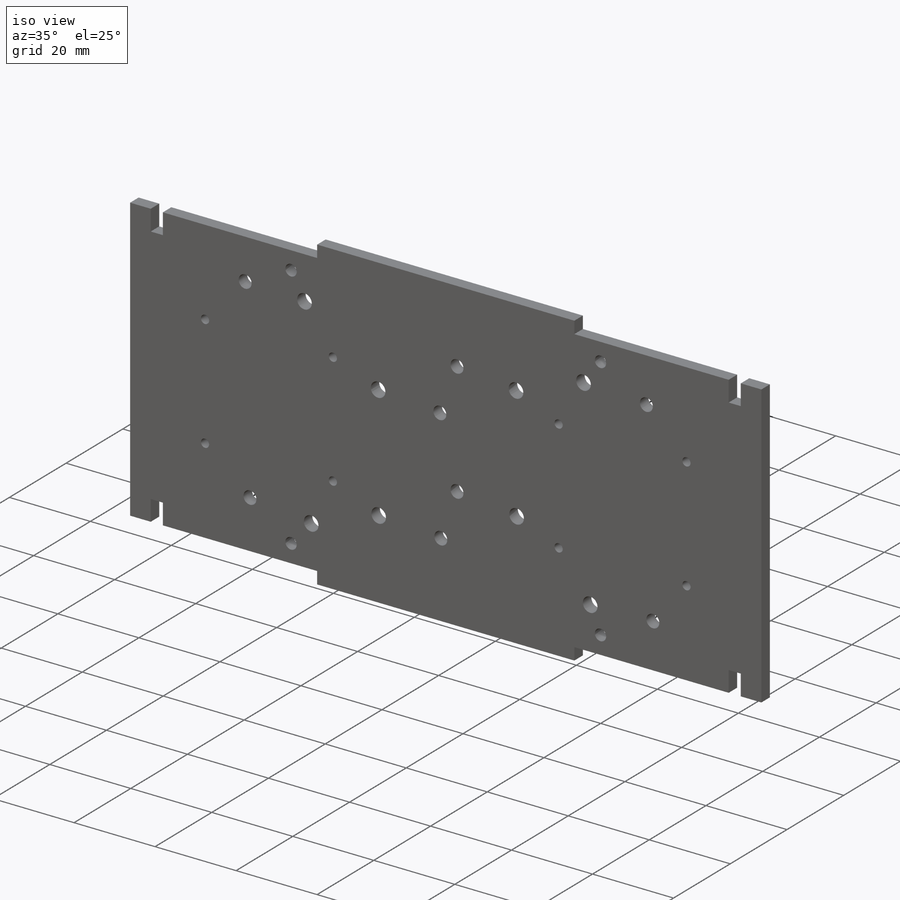
[diagram: iso view]
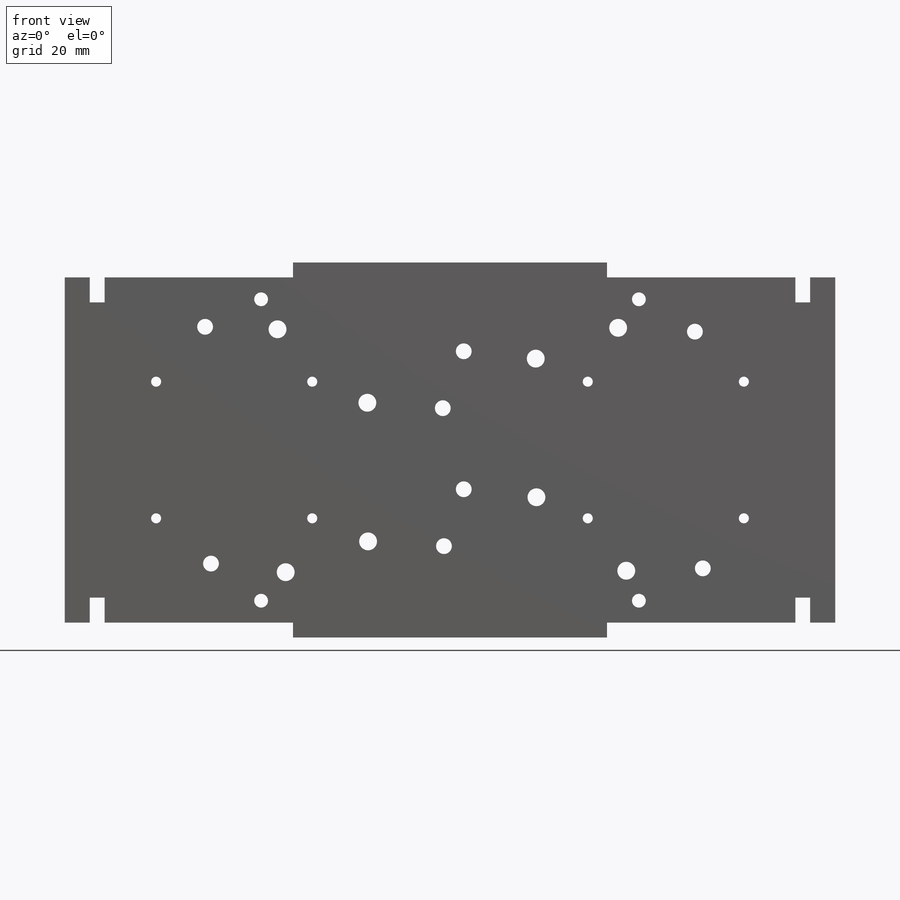
[diagram: front view]
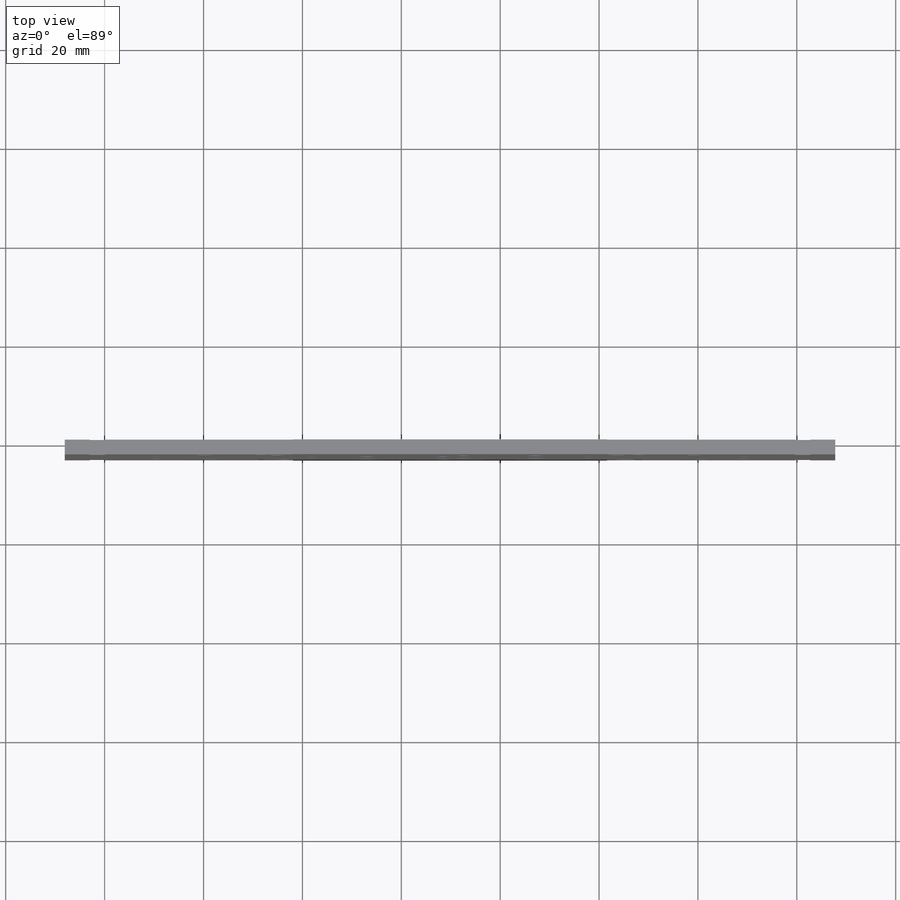
[diagram: top view]
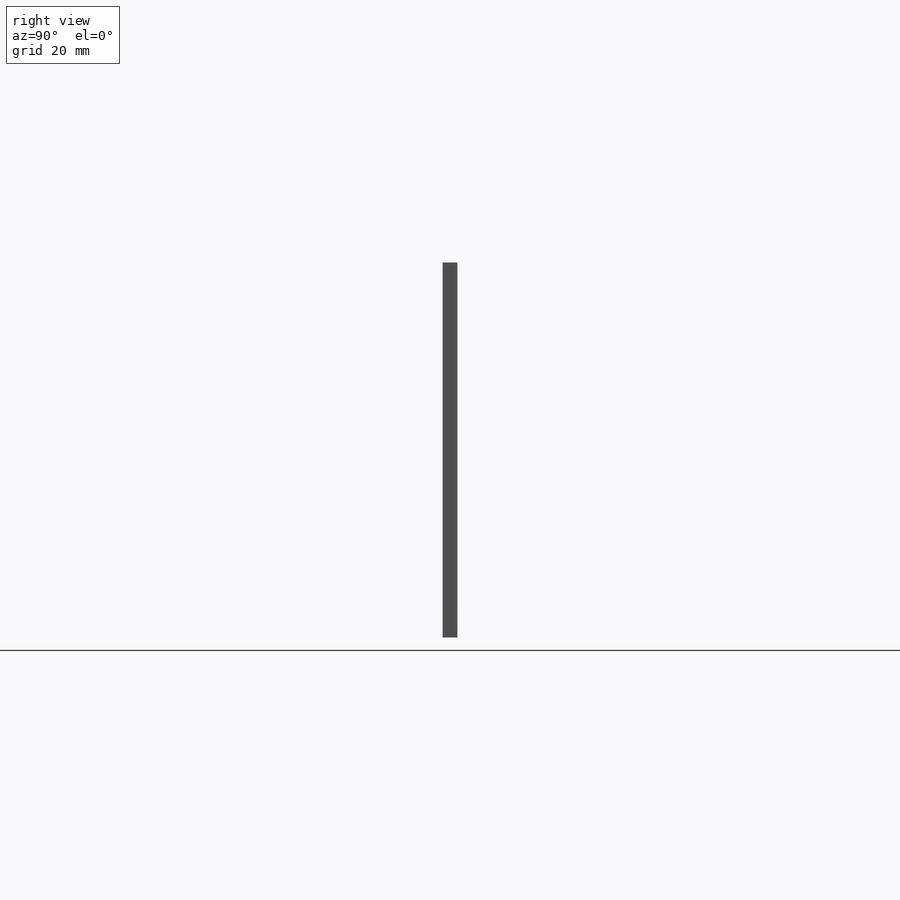
[diagram: right view]
SOLIDWORKS PART (.sldprt)
format: sldprt  version: not decoded by parser v0  size: 907,776 bytes
history: native  units: mm
features: cut_extrude x11, sketch x9, mirror x3, extrude x2, plane x2, material x1 (+11 scaffold rows collapsed)
feature tree (39):
  scaffold x11  (default folders/planes/origin — collapsed)
  material  "Material <not specified>"
  sketch  "Sketch3"  dims[D1=5.08mm D2=2.9972mm D3=2.9972mm D4=38.1mm]
  extrude  "Boss-Extrude1"  Depth=2.9972mm
  sketch  "Sketch4"  dims[D1=10.16mm D2=5.08mm D3=66.04mm]
  extrude  "Boss-Extrude2"  [1 undecoded]
  sketch  "Sketch5"  dims[D1=5.08mm D2=50.4444mm]
  cut_extrude  "Cut-Extrude1"  [1 undecoded]
  sketch  "Sketch6"  dims[c1.D3=~4.606472mm c1.D4=~4.606472mm c1.D5=~4.606472mm c1.D6=~4.606472mm c1.D7=~4.606472mm c1.D8=~4.606472mm c1.D9=~4.606472mm c1.D10=~4.606472mm c1.D11=3.6195mm c1.D1=123.19mm c1.D2=65.024mm c2.D3=6.5659mm c2.D4=28.0035mm c2.D5=26.8732mm c2.D6=6.9088mm c2.D7=12.2428mm c2.D8=38.6969mm c2.D9=21.1455mm c2.D10=78.2701mm]
  cut_extrude  "Cut-Extrude2"  [1 undecoded]
  sketch  "Sketch7"
  plane  "Plane2"
  mirror  "Mirror1"
  sketch  "Sketch9"  dims[c1.D2=2.794mm c1.D3=2.794mm c1.D4=2.794mm c1.D1=32.9565mm c2.D3=6.0452mm c2.D4=79.1972mm]
  cut_extrude  "Cut-Extrude3"  [1 undecoded]
  sketch  "Sketch10"  dims[D1=3.6195mm D2=123.19mm D3=65.024mm D4=78.3082mm D5=21.1455mm D6=12.2174mm D7=24.13mm D8=6.2865mm D9=25.781mm D10=5.9944mm D11=76.3524mm]
  cut_extrude  "Prduino Holes-4"  [1 undecoded]
  cut_extrude  "Cut-Extrude4"  [1 undecoded]
  plane  "Plane3"
  sketch  "Sketch11"
  cut_extrude  "Arduino Uno Mega Holes-1"  [1 undecoded]
  mirror  "Arduino Uno Mega Holes"
  cut_extrude  "Arduino Uno Mega Holes-5"  Depth=20.32mm
  cut_extrude  "Cut-Extrude5"  [1 undecoded]
  sketch  "Sketch12"
  cut_extrude  "Camera Mount-1"  [1 undecoded]
  mirror  "Camera Mount"
  cut_extrude  "Camera Mount-4"  Depth=8.89mm
  cut_extrude  "Cut-Extrude6"  [1 undecoded]
decode coverage: 9 of 25 modeling features carry decoded parameters
note: ~ marks probable driven/reference dimensions
note: 10 parameter values undecoded
summary: no parameter record found for 10 features
note: suppression state not decoded; provenance and decode notes live in map.json
